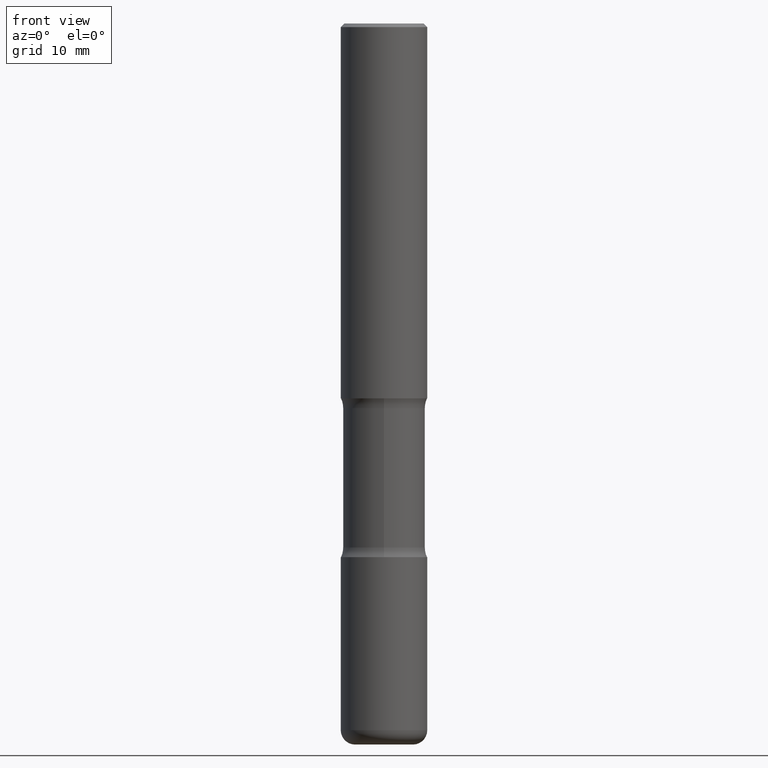
[diagram: clean part render]
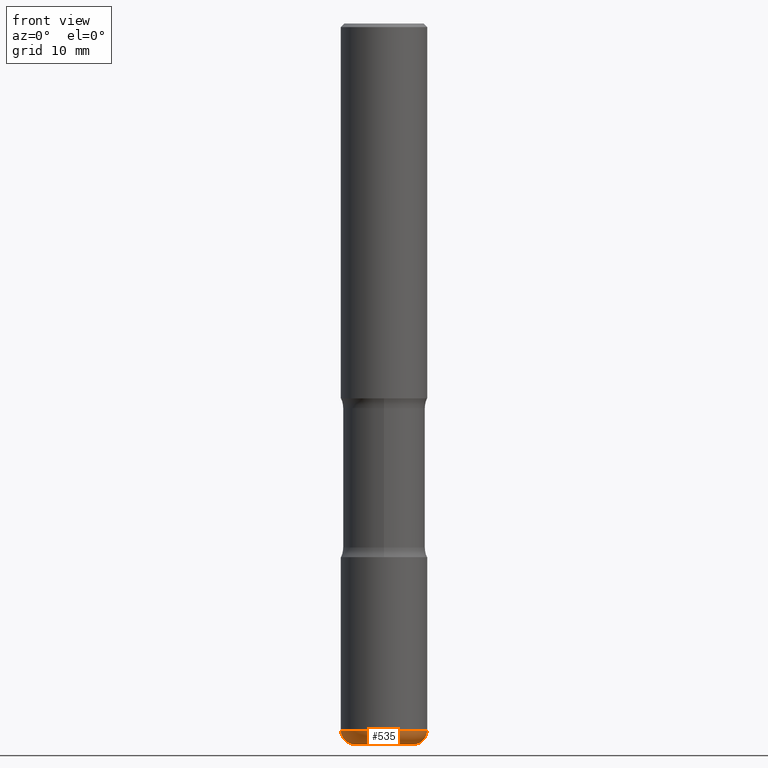
[diagram: same view with one face highlighted and labeled with its STEP entity id]
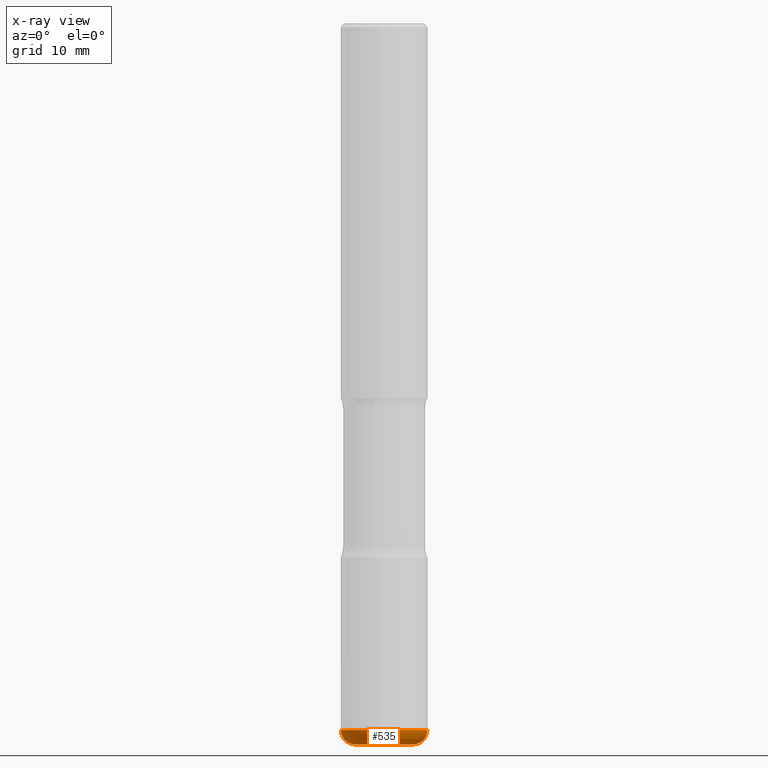
[diagram: x-ray of the same camera — body ghosted, the highlighted face saturated]
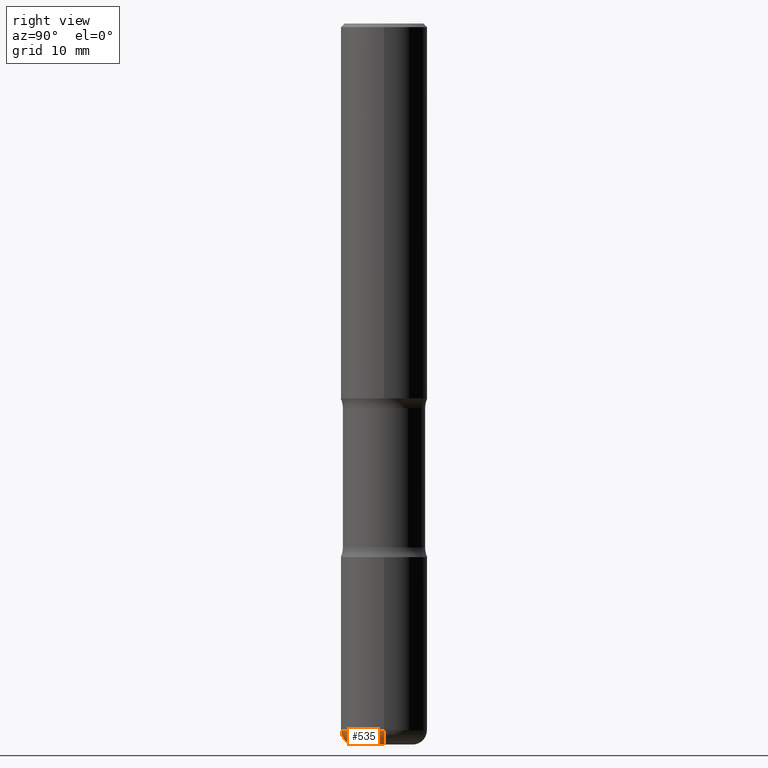
[diagram: same view with one face highlighted and labeled with its STEP entity id]
A machine part, front view. The second image highlights one B-rep face of the part: STEP entity #535.
The next image is the same camera in x-ray: the body ghosted, the highlighted face saturated — about 0% of this face is hidden behind the body in this view.
A second angle (right view) of the same face is appended — the face is thin or edge-on in the first view.
In plain terms, the highlighted toroidal blend (fillet) surface has major radius 4.0005 mm and minor (blend) radius 1.999 mm.
Its self-contained STEP definition (entity closure, byte-faithful):
#24 = VERTEX_POINT ( 'NONE', #509 ) ;
#34 = CIRCLE ( 'NONE', #345, 0.07870000000000021423 ) ;
#55 = CIRCLE ( 'NONE', #296, 0.1575000000000002232 ) ;
#56 = EDGE_LOOP ( 'NONE', ( #391, #492, #399, #190 ) ) ;
#73 = DIRECTION ( 'NONE',  ( 7.105427357601001859E-15, 1.000000000000000000, -3.491481338843145583E-15 ) ) ;
#79 = DIRECTION ( 'NONE',  ( 1.000000000000000000, -6.982962677686268288E-15, 4.883557194083113462E-29 ) ) ;
#81 = TOROIDAL_SURFACE ( 'NONE', #386, 0.1575000000000002232, 0.07870000000000021423 ) ;
#83 = CIRCLE ( 'NONE', #208, 0.2362000000000002153 ) ;
#94 = DIRECTION ( 'NONE',  ( -6.982962677686266711E-15, -1.000000000000000000, 3.491481338843145583E-15 ) ) ;
#112 = CIRCLE ( 'NONE', #187, 0.07870000000000021423 ) ;
#131 = EDGE_CURVE ( 'NONE', #133, #24, #34, .T. ) ;
#133 = VERTEX_POINT ( 'NONE', #432 ) ;
#155 = DIRECTION ( 'NONE',  ( -1.000000000000000000, 7.105427357600997914E-15, 0.000000000000000000 ) ) ;
#159 = EDGE_CURVE ( 'NONE', #287, #247, #112, .T. ) ;
#187 = AXIS2_PLACEMENT_3D ( 'NONE', #555, #73, #155 ) ;
#189 = DIRECTION ( 'NONE',  ( -2.445468806185136597E-29, 3.491481338843145583E-15, 1.000000000000000000 ) ) ;
#190 = ORIENTED_EDGE ( 'NONE', *, *, #525, .F. ) ;
#201 = CARTESIAN_POINT ( 'NONE',  ( 9.435352294904109900E-29, -1.347118244965850534E-14, -3.858299999999998509 ) ) ;
#205 = DIRECTION ( 'NONE',  ( 1.000000000000000000, -6.982962677686276177E-15, 0.000000000000000000 ) ) ;
#208 = AXIS2_PLACEMENT_3D ( 'NONE', #482, #218, #393 ) ;
#218 = DIRECTION ( 'NONE',  ( -2.445468806185136597E-29, 3.491481338843145583E-15, 1.000000000000000000 ) ) ;
#247 = VERTEX_POINT ( 'NONE', #385 ) ;
#277 = CARTESIAN_POINT ( 'NONE',  ( 9.627810689950880306E-29, -1.374596203102546026E-14, -3.936999999999998945 ) ) ;
#287 = VERTEX_POINT ( 'NONE', #350 ) ;
#296 = AXIS2_PLACEMENT_3D ( 'NONE', #277, #189, #449 ) ;
#344 = CARTESIAN_POINT ( 'NONE',  ( 0.1575000000000002232, -1.457099907139409361E-14, -3.858299999999998509 ) ) ;
#345 = AXIS2_PLACEMENT_3D ( 'NONE', #344, #94, #205 ) ;
#350 = CARTESIAN_POINT ( 'NONE',  ( -0.1575000000000002232, -1.220986886499822344E-14, -3.936999999999998945 ) ) ;
#385 = CARTESIAN_POINT ( 'NONE',  ( -0.2362000000000003264, -1.179288050779314737E-14, -3.858299999999998509 ) ) ;
#386 = AXIS2_PLACEMENT_3D ( 'NONE', #201, #405, #79 ) ;
#391 = ORIENTED_EDGE ( 'NONE', *, *, #159, .F. ) ;
#393 = DIRECTION ( 'NONE',  ( 1.000000000000000000, -6.982962677686266711E-15, 0.000000000000000000 ) ) ;
#399 = ORIENTED_EDGE ( 'NONE', *, *, #131, .T. ) ;
#405 = DIRECTION ( 'NONE',  ( -2.445468806185136597E-29, 3.491481338843145583E-15, 1.000000000000000000 ) ) ;
#432 = CARTESIAN_POINT ( 'NONE',  ( 0.1575000000000002232, -1.484577865276104695E-14, -3.936999999999998945 ) ) ;
#449 = DIRECTION ( 'NONE',  ( 1.000000000000000000, -6.982962677686265133E-15, 0.000000000000000000 ) ) ;
#452 = EDGE_CURVE ( 'NONE', #287, #133, #55, .T. ) ;
#482 = CARTESIAN_POINT ( 'NONE',  ( 9.435352294904109900E-29, -1.347118244965850534E-14, -3.858299999999998509 ) ) ;
#484 = FACE_OUTER_BOUND ( 'NONE', #56, .T. ) ;
#492 = ORIENTED_EDGE ( 'NONE', *, *, #452, .T. ) ;
#509 = CARTESIAN_POINT ( 'NONE',  ( 0.2362000000000003264, -1.512055823412800345E-14, -3.858299999999998509 ) ) ;
#525 = EDGE_CURVE ( 'NONE', #247, #24, #83, .T. ) ;
#535 = ADVANCED_FACE ( 'NONE', ( #484 ), #81, .T. ) ;
#555 = CARTESIAN_POINT ( 'NONE',  ( -0.1575000000000002232, -1.235207764083634616E-14, -3.858299999999998509 ) ) ;